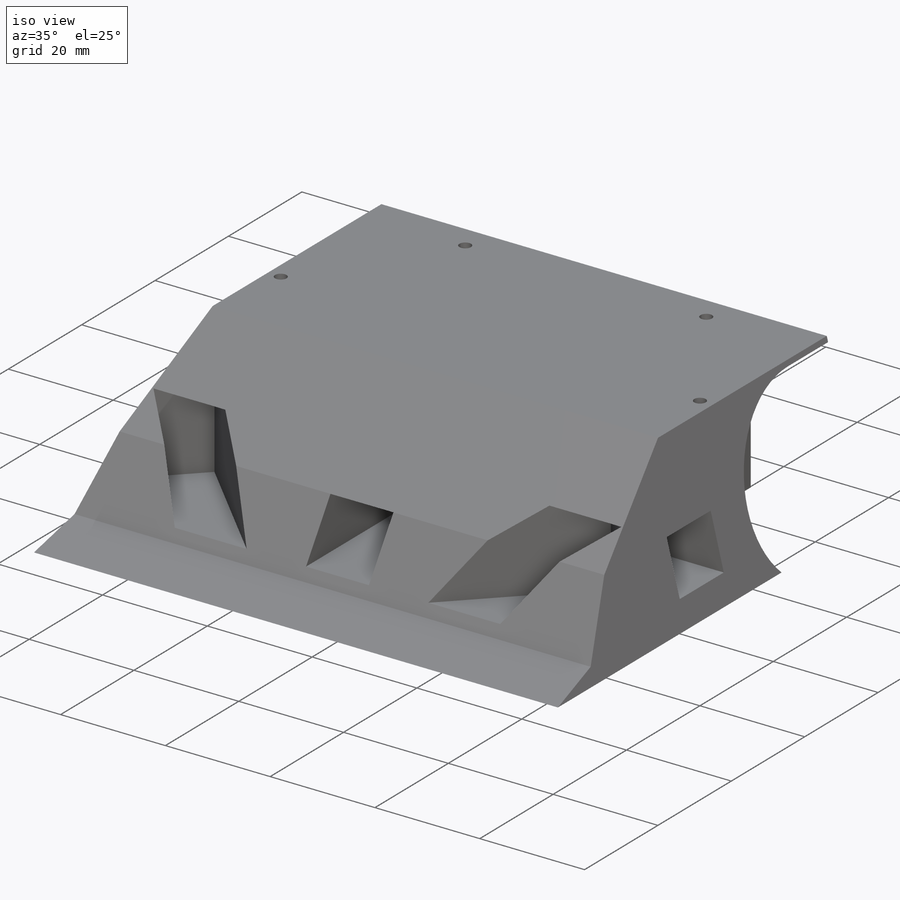
[diagram: iso view]
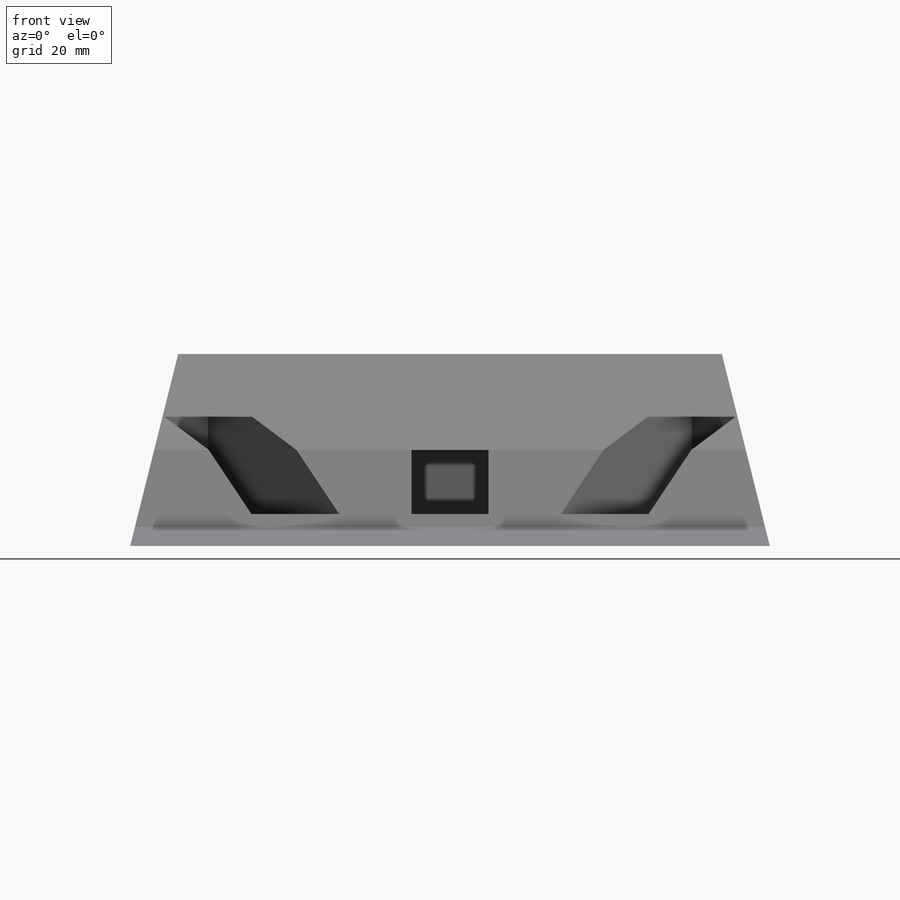
[diagram: front view]
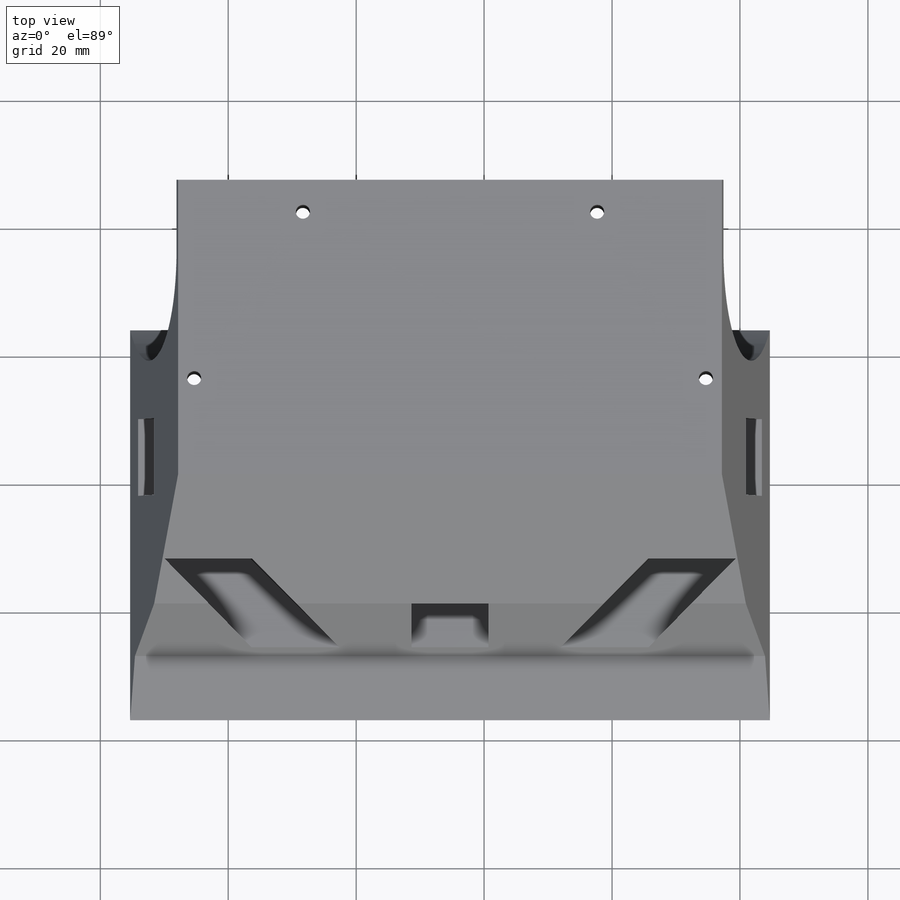
[diagram: top view]
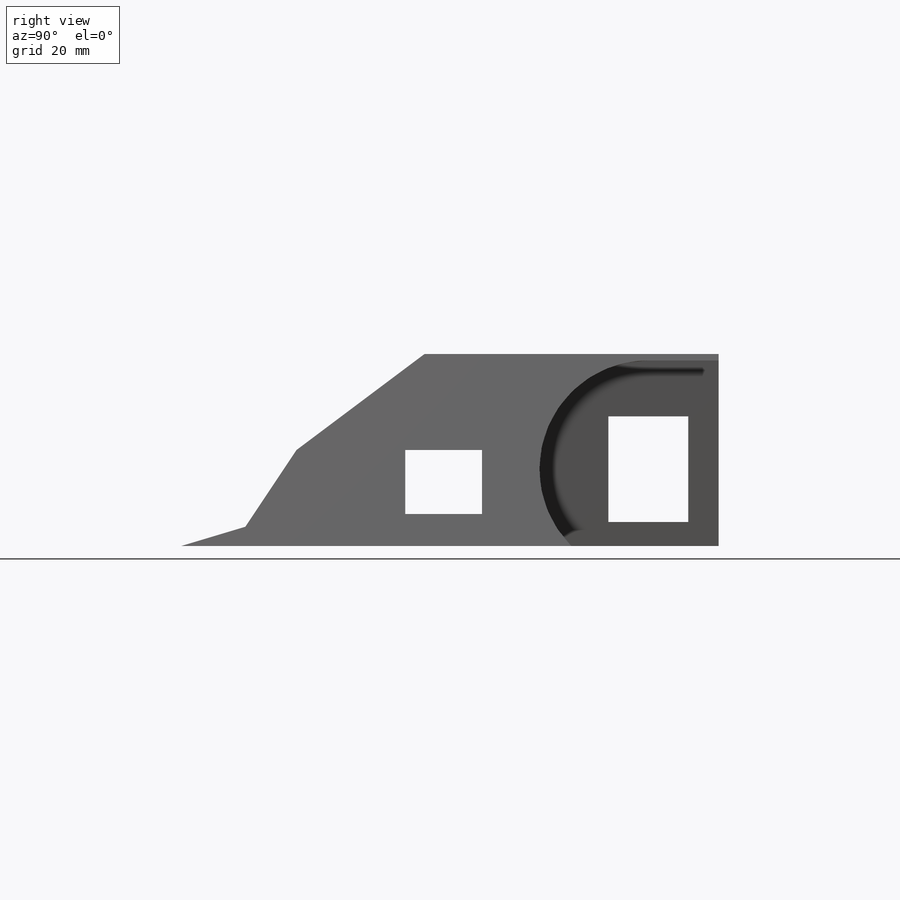
[diagram: right view]
SOLIDWORKS PART (.sldprt)
format: sldprt  version: not decoded by parser v0  size: 385,536 bytes
history: native  units: mm
features: sketch x15, cut_extrude x13, plane x3, extrude x2, material x1 (+10 scaffold rows collapsed)
feature tree (44):
  scaffold x10  (default folders/planes/origin — collapsed)
  material  "Malzeme <belirli değil>"
  plane  "Ön Düzlem"
  plane  "Üst Düzlem"
  plane  "Sağ Düzlem"
  sketch  "Çizim2"  dims[D1=90.0mm D2=100.0mm]
  extrude  "Yükseklik-Ekstrüzyon1"  Depth=30mm
  sketch  "Çizim5"  dims[D2=34.0mm D1=17.0mm D3=18.0mm]
  cut_extrude  "Kes-Ekstrüzyon11"  Depth=22mm
  sketch  "Çizim6"  dims[D1=34.0mm D2=18.0mm D3=17.0mm]
  cut_extrude  "Kes-Ekstrüzyon12"  Depth=22mm
  sketch  "Çizim7"  dims[D1=12.5mm D2=16.5mm D3=10.75mm D4=9.75mm D5=6.25mm]
  cut_extrude  "Kes-Ekstrüzyon13"  Depth=70mm
  sketch  "Çizim8"  dims[D1=6.0mm]
  cut_extrude  "Kes-Ekstrüzyon14"  Depth=100mm
  sketch  "Çizim9"
  cut_extrude  "Kes-Ekstrüzyon15"  Depth=100mm
  sketch  "Çizim10"  dims[c1.D1=12.0mm c1.D2=5.0mm c1.D3=9.0mm c1.D4=10.0mm c2.D3=9.0mm]
  cut_extrude  "Kes-Ekstrüzyon16"  Depth=100mm
  sketch  "Çizim11"  dims[D1=5.0mm D2=12.0mm D3=10.0mm D4=44.0mm]
  cut_extrude  "Kes-Ekstrüzyon17"  Depth=45mm
  sketch  "Çizim12"
  extrude  "Yükseklik-Ekstrüzyon2"  Depth=45mm
  sketch  "Çizim13"  dims[D1=9.7mm D2=15.2mm D3=0.0mm]
  cut_extrude  "Kes-Ekstrüzyon18"  Depth=45mm
  sketch  "Çizim14"  dims[D1=15.2mm D2=9.7mm]
  cut_extrude  "Kes-Ekstrüzyon19"  Depth=45mm
  sketch  "Çizim15"
  cut_extrude  "Kes-Ekstrüzyon20"  Depth=45mm
  sketch  "Çizim16"  dims[D1=10.0mm D2=3.0mm D3=8.0mm D4=20.0mm D5=12.0mm D6=~27.730849mm]
  cut_extrude  "Kes-Ekstrüzyon21"  Depth=100mm
  sketch  "Çizim17"  dims[c1.D3=2.2mm c1.D4=2.2mm c1.D6=~1.672343mm c1.D7=~1.797173mm c1.D1=27.0mm c1.D2=5.0mm c1.D5=15.0mm c2.D6=5.0mm c2.D7=27.0mm c2.D8=15.0mm c2.D9=10.0mm c2.D10=10.0mm]
  cut_extrude  "Kes-Ekstrüzyon24"  Depth=100mm
  sketch  "Çizim19"  dims[D1=7.5mm D2=7.5mm]
  cut_extrude  "Kes-Ekstrüzyon25"  Depth=100mm
decode coverage: 27 of 30 modeling features carry decoded parameters
note: ~ marks probable driven/reference dimensions
note: suppression state not decoded; provenance and decode notes live in map.json
